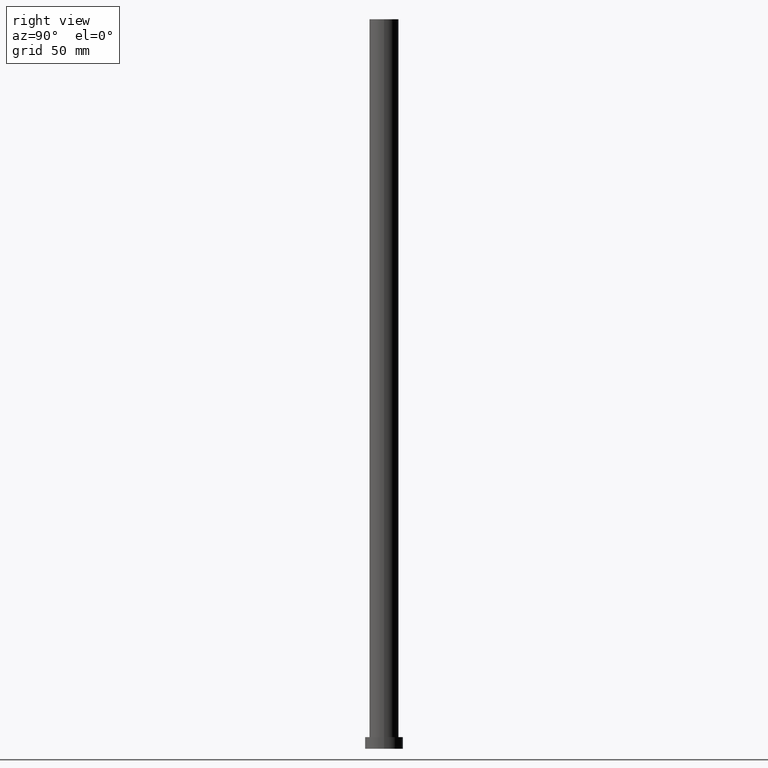
[diagram: clean part render]
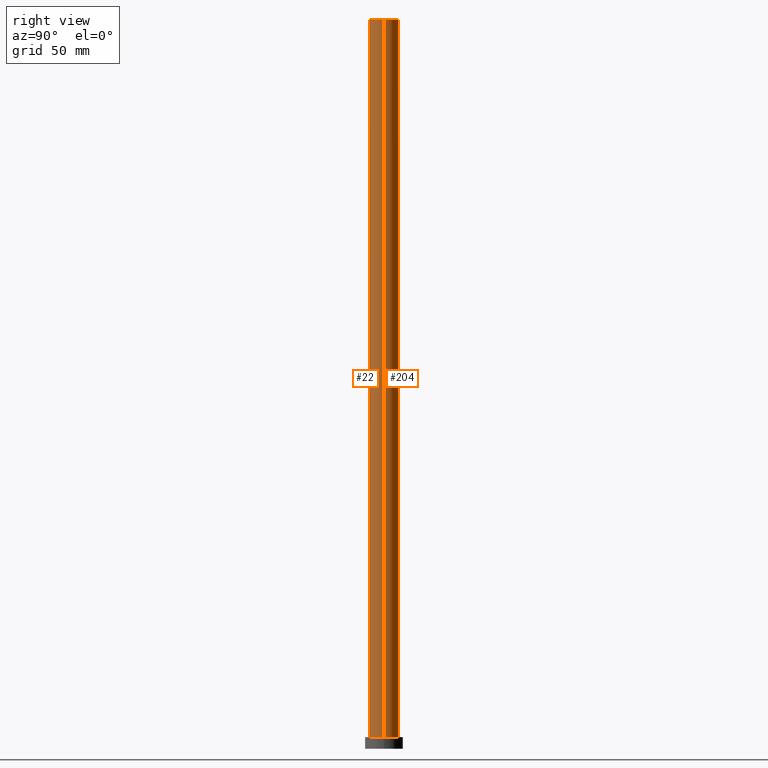
[diagram: same view with one multi-face feature highlighted, each face labeled with its STEP entity id]
A machine part, right view. The highlighted faces form ONE feature: a constant-radius fillet chain: 2 tangent blend faces with common blend radius 10 mm. The faces share edges in the B-rep.
Their STEP definitions:
[1] entity #204 (Cylinder):
#3 = VECTOR ( 'NONE', #120, 1000.000000000000000 ) ;
#16 = CIRCLE ( 'NONE', #51, 10.00000000000000000 ) ;
#17 = EDGE_LOOP ( 'NONE', ( #193, #41, #80, #64 ) ) ;
#25 = CARTESIAN_POINT ( 'NONE',  ( -10.00000000000000000, 0.000000000000000000, 500.0000000000000000 ) ) ;
#29 = DIRECTION ( 'NONE',  ( 1.000000000000000000, 0.000000000000000000, 0.000000000000000000 ) ) ;
#41 = ORIENTED_EDGE ( 'NONE', *, *, #115, .T. ) ;
#45 = CARTESIAN_POINT ( 'NONE',  ( 0.000000000000000000, 0.000000000000000000, 500.0000000000000000 ) ) ;
#47 = LINE ( 'NONE', #127, #218 ) ;
#51 = AXIS2_PLACEMENT_3D ( 'NONE', #45, #212, #128 ) ;
#52 = CARTESIAN_POINT ( 'NONE',  ( 10.00000000000000000, 1.224646799147353256E-15, 8.000000000000000000 ) ) ;
#58 = VERTEX_POINT ( 'NONE', #146 ) ;
#64 = ORIENTED_EDGE ( 'NONE', *, *, #151, .F. ) ;
#70 = CYLINDRICAL_SURFACE ( 'NONE', #194, 10.00000000000000000 ) ;
#73 = CARTESIAN_POINT ( 'NONE',  ( -10.00000000000000000, 0.000000000000000000, 500.0000000000000000 ) ) ;
#75 = EDGE_CURVE ( 'NONE', #208, #161, #16, .T. ) ;
#80 = ORIENTED_EDGE ( 'NONE', *, *, #156, .T. ) ;
#81 = CIRCLE ( 'NONE', #153, 10.00000000000000000 ) ;
#93 = FACE_OUTER_BOUND ( 'NONE', #17, .T. ) ;
#107 = CARTESIAN_POINT ( 'NONE',  ( 0.000000000000000000, 0.000000000000000000, 500.0000000000000000 ) ) ;
#110 = DIRECTION ( 'NONE',  ( -0.000000000000000000, -0.000000000000000000, -1.000000000000000000 ) ) ;
#111 = DIRECTION ( 'NONE',  ( -1.000000000000000000, 0.000000000000000000, 0.000000000000000000 ) ) ;
#115 = EDGE_CURVE ( 'NONE', #208, #207, #47, .T. ) ;
#117 = DIRECTION ( 'NONE',  ( 0.000000000000000000, 0.000000000000000000, 1.000000000000000000 ) ) ;
#120 = DIRECTION ( 'NONE',  ( -0.000000000000000000, -0.000000000000000000, -1.000000000000000000 ) ) ;
#127 = CARTESIAN_POINT ( 'NONE',  ( 10.00000000000000000, 1.224646799147353256E-15, 500.0000000000000000 ) ) ;
#128 = DIRECTION ( 'NONE',  ( 1.000000000000000000, 0.000000000000000000, 0.000000000000000000 ) ) ;
#142 = LINE ( 'NONE', #25, #3 ) ;
#146 = CARTESIAN_POINT ( 'NONE',  ( -10.00000000000000000, 0.000000000000000000, 8.000000000000000000 ) ) ;
#151 = EDGE_CURVE ( 'NONE', #161, #58, #142, .T. ) ;
#153 = AXIS2_PLACEMENT_3D ( 'NONE', #190, #117, #29 ) ;
#156 = EDGE_CURVE ( 'NONE', #207, #58, #81, .T. ) ;
#161 = VERTEX_POINT ( 'NONE', #73 ) ;
#167 = DIRECTION ( 'NONE',  ( -0.000000000000000000, -0.000000000000000000, -1.000000000000000000 ) ) ;
#190 = CARTESIAN_POINT ( 'NONE',  ( 0.000000000000000000, 0.000000000000000000, 8.000000000000000000 ) ) ;
#193 = ORIENTED_EDGE ( 'NONE', *, *, #75, .F. ) ;
#194 = AXIS2_PLACEMENT_3D ( 'NONE', #107, #167, #111 ) ;
#204 = ADVANCED_FACE ( 'NONE', ( #93 ), #70, .T. ) ;
#207 = VERTEX_POINT ( 'NONE', #52 ) ;
#208 = VERTEX_POINT ( 'NONE', #244 ) ;
#212 = DIRECTION ( 'NONE',  ( 0.000000000000000000, 0.000000000000000000, 1.000000000000000000 ) ) ;
#218 = VECTOR ( 'NONE', #110, 1000.000000000000000 ) ;
#244 = CARTESIAN_POINT ( 'NONE',  ( 10.00000000000000000, 1.224646799147353256E-15, 500.0000000000000000 ) ) ;
[2] entity #22 (Cylinder):
#3 = VECTOR ( 'NONE', #120, 1000.000000000000000 ) ;
#10 = DIRECTION ( 'NONE',  ( 1.000000000000000000, 0.000000000000000000, 0.000000000000000000 ) ) ;
#21 = ORIENTED_EDGE ( 'NONE', *, *, #151, .T. ) ;
#22 = ADVANCED_FACE ( 'NONE', ( #79 ), #59, .T. ) ;
#25 = CARTESIAN_POINT ( 'NONE',  ( -10.00000000000000000, 0.000000000000000000, 500.0000000000000000 ) ) ;
#39 = CARTESIAN_POINT ( 'NONE',  ( 0.000000000000000000, 0.000000000000000000, 500.0000000000000000 ) ) ;
#47 = LINE ( 'NONE', #127, #218 ) ;
#50 = CIRCLE ( 'NONE', #253, 10.00000000000000000 ) ;
#52 = CARTESIAN_POINT ( 'NONE',  ( 10.00000000000000000, 1.224646799147353256E-15, 8.000000000000000000 ) ) ;
#55 = DIRECTION ( 'NONE',  ( -1.000000000000000000, 0.000000000000000000, 0.000000000000000000 ) ) ;
#58 = VERTEX_POINT ( 'NONE', #146 ) ;
#59 = CYLINDRICAL_SURFACE ( 'NONE', #236, 10.00000000000000000 ) ;
#65 = DIRECTION ( 'NONE',  ( 1.000000000000000000, 0.000000000000000000, 0.000000000000000000 ) ) ;
#73 = CARTESIAN_POINT ( 'NONE',  ( -10.00000000000000000, 0.000000000000000000, 500.0000000000000000 ) ) ;
#79 = FACE_OUTER_BOUND ( 'NONE', #124, .T. ) ;
#102 = ORIENTED_EDGE ( 'NONE', *, *, #254, .T. ) ;
#110 = DIRECTION ( 'NONE',  ( -0.000000000000000000, -0.000000000000000000, -1.000000000000000000 ) ) ;
#115 = EDGE_CURVE ( 'NONE', #208, #207, #47, .T. ) ;
#119 = ORIENTED_EDGE ( 'NONE', *, *, #115, .F. ) ;
#120 = DIRECTION ( 'NONE',  ( -0.000000000000000000, -0.000000000000000000, -1.000000000000000000 ) ) ;
#124 = EDGE_LOOP ( 'NONE', ( #119, #180, #21, #102 ) ) ;
#127 = CARTESIAN_POINT ( 'NONE',  ( 10.00000000000000000, 1.224646799147353256E-15, 500.0000000000000000 ) ) ;
#133 = DIRECTION ( 'NONE',  ( 0.000000000000000000, 0.000000000000000000, 1.000000000000000000 ) ) ;
#140 = DIRECTION ( 'NONE',  ( -0.000000000000000000, -0.000000000000000000, -1.000000000000000000 ) ) ;
#142 = LINE ( 'NONE', #25, #3 ) ;
#146 = CARTESIAN_POINT ( 'NONE',  ( -10.00000000000000000, 0.000000000000000000, 8.000000000000000000 ) ) ;
#149 = AXIS2_PLACEMENT_3D ( 'NONE', #239, #133, #10 ) ;
#151 = EDGE_CURVE ( 'NONE', #161, #58, #142, .T. ) ;
#161 = VERTEX_POINT ( 'NONE', #73 ) ;
#180 = ORIENTED_EDGE ( 'NONE', *, *, #186, .F. ) ;
#186 = EDGE_CURVE ( 'NONE', #161, #208, #241, .T. ) ;
#199 = DIRECTION ( 'NONE',  ( 0.000000000000000000, 0.000000000000000000, 1.000000000000000000 ) ) ;
#201 = CARTESIAN_POINT ( 'NONE',  ( 0.000000000000000000, 0.000000000000000000, 8.000000000000000000 ) ) ;
#207 = VERTEX_POINT ( 'NONE', #52 ) ;
#208 = VERTEX_POINT ( 'NONE', #244 ) ;
#218 = VECTOR ( 'NONE', #110, 1000.000000000000000 ) ;
#236 = AXIS2_PLACEMENT_3D ( 'NONE', #39, #140, #55 ) ;
#239 = CARTESIAN_POINT ( 'NONE',  ( 0.000000000000000000, 0.000000000000000000, 500.0000000000000000 ) ) ;
#241 = CIRCLE ( 'NONE', #149, 10.00000000000000000 ) ;
#244 = CARTESIAN_POINT ( 'NONE',  ( 10.00000000000000000, 1.224646799147353256E-15, 500.0000000000000000 ) ) ;
#253 = AXIS2_PLACEMENT_3D ( 'NONE', #201, #199, #65 ) ;
#254 = EDGE_CURVE ( 'NONE', #58, #207, #50, .T. ) ;